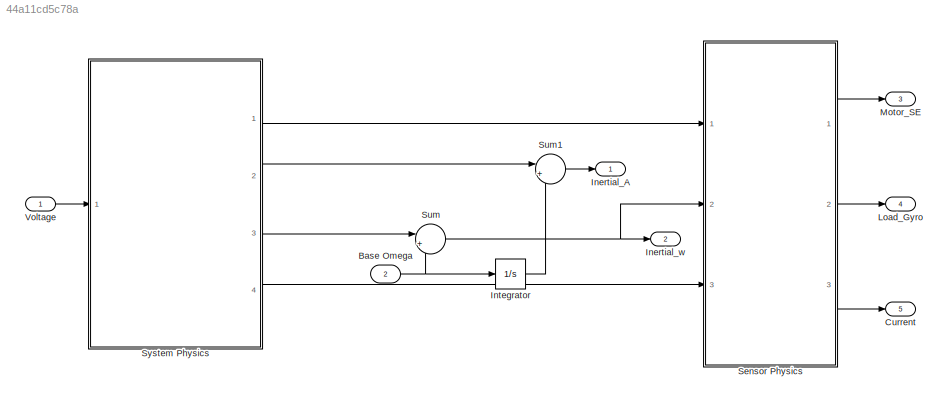
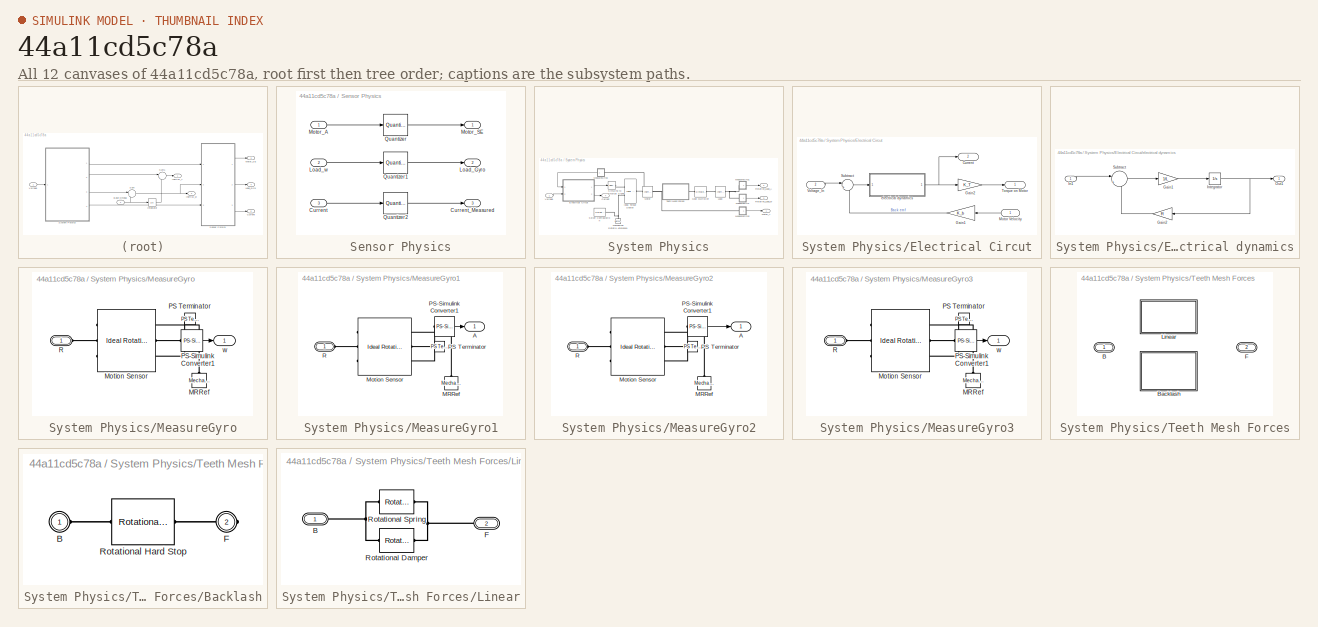
[diagram: thumbnail index - all 12 canvases of the model, root first then tree order]
MODEL slx_44a11cd5c78a
KIND model
CONFIG AbsTol = auto
CONFIG EnableMultiTasking = off
CONFIG FixedStep = auto
CONFIG MaxStep = auto
CONFIG MinStep = auto
CONFIG RelTol = 1e-3
CONFIG SampleTimeConstraint = Unconstrained
CONFIG SolverName = VariableStepAuto
CONFIG StartTime = 0.0
CONFIG StopTime = 10.0
BLOCK [Inport] Base Omega
  OutDataTypeStr = double
  Port = 2
  SampleTime = 0
BLOCK [Outport] Current
  Port = 5
BLOCK [Outport] Inertial_A
BLOCK [Outport] Inertial_w
  Port = 2
BLOCK [Integrator] Integrator
  Ports = [1, 1]
BLOCK [Outport] Load_Gyro
  Port = 4
BLOCK [Outport] Motor_SE
  Port = 3
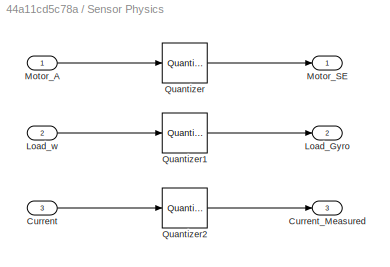
BLOCK [SubSystem] Sensor Physics
  Ports = [3, 3]
  RequestExecContextInheritance = off
BLOCK [Inport] Sensor Physics/Current
  Port = 3
BLOCK [Outport] Sensor Physics/Current_Measured
  Port = 3
BLOCK [Outport] Sensor Physics/Load_Gyro
  Port = 2
BLOCK [Inport] Sensor Physics/Load_w
  Port = 2
BLOCK [Inport] Sensor Physics/Motor_A
BLOCK [Outport] Sensor Physics/Motor_SE
BLOCK [Quantizer] Sensor Physics/Quantizer
  QuantizationInterval = 2*pi/(2^25)
BLOCK [Quantizer] Sensor Physics/Quantizer1
  QuantizationInterval = 2*pi/(2^25)/(ts_control)
BLOCK [Quantizer] Sensor Physics/Quantizer2
  QuantizationInterval = 1e-10
BLOCK [Sum] Sum
  Inputs = |++
  Ports = [2, 1]
BLOCK [Sum] Sum1
  Inputs = |++
  Ports = [2, 1]
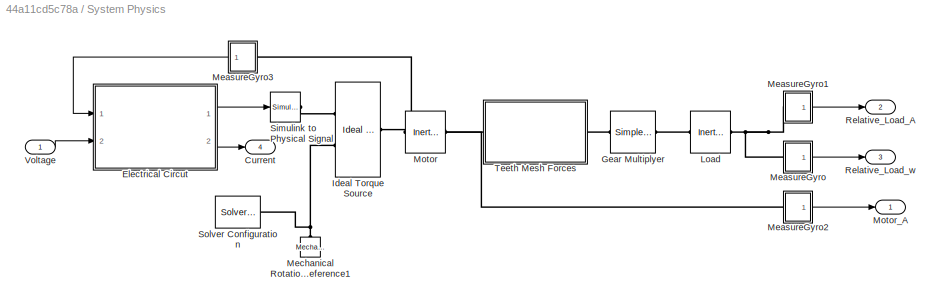
BLOCK [SubSystem] System Physics
  Ports = [1, 4]
  RequestExecContextInheritance = off
BLOCK [Outport] System Physics/Current
  Port = 4
BLOCK [SubSystem] System Physics/Electrical Circut
  Ports = [2, 2]
  RequestExecContextInheritance = off
BLOCK [Outport] System Physics/Electrical Circut/Current
  Port = 2
BLOCK [Gain] System Physics/Electrical Circut/Gain1
  Gain = K_b
BLOCK [Gain] System Physics/Electrical Circut/Gain2
  Gain = K_T
BLOCK [Inport] System Physics/Electrical Circut/Motor Velocity
BLOCK [Sum] System Physics/Electrical Circut/Subtract
  Inputs = |+-
  Ports = [2, 1]
BLOCK [Outport] System Physics/Electrical Circut/Torque on Motor
BLOCK [Inport] System Physics/Electrical Circut/Voltage_In
  NameLocation = top
  Port = 2
BLOCK [SubSystem] System Physics/Electrical Circut/electrical dynamics
  Ports = [1, 1]
  RequestExecContextInheritance = off
BLOCK [Gain] System Physics/Electrical Circut/electrical dynamics/Gain1
  Gain = 1/L
BLOCK [Gain] System Physics/Electrical Circut/electrical dynamics/Gain2
  Gain = R
BLOCK [Inport] System Physics/Electrical Circut/electrical dynamics/In1
BLOCK [Integrator] System Physics/Electrical Circut/electrical dynamics/Integrator
  Ports = [1, 1]
BLOCK [Outport] System Physics/Electrical Circut/electrical dynamics/Out1
BLOCK [Sum] System Physics/Electrical Circut/electrical dynamics/Subtract
  Inputs = |+-
  Ports = [2, 1]
BLOCK [Reference] System Physics/Gear Multiplyer  REF=sdl_lib/Gears/Simple Gear
  Ports = [0, 0, 0, 0, 0, 1, 1]
  SourceBlock = sdl_lib/Gears/Simple Gear
  SourceProductBaseCode = LD
  SourceType = Simple Gear
BLOCK [Reference] System Physics/Ideal Torque Source  REF=fl_lib/Mechanical/Mechanical Sources/Ideal Torque Source
  Ports = [0, 0, 0, 0, 0, 1, 2]
  SourceBlock = fl_lib/Mechanical/Mechanical Sources/Ideal Torque Source
  SourceProductBaseCode = SS
  SourceType = Ideal Torque Source
BLOCK [Reference] System Physics/Load  REF=fl_lib/Mechanical/Rotational Elements/Inertia
  NameLocation = top
  Ports = [0, 0, 0, 0, 0, 1, 1]
  SourceBlock = fl_lib/Mechanical/Rotational Elements/Inertia
  SourceProductBaseCode = SS
  SourceType = Inertia
BLOCK [SubSystem] System Physics/MeasureGyro
  Ports = [0, 1, 0, 0, 0, 1]
  RequestExecContextInheritance = off
BLOCK [Reference] System Physics/MeasureGyro/MRRef  REF=fl_lib/Mechanical/Rotational Elements/Mechanical
Rotational Reference
  NameLocation = right
  Ports = [0, 0, 0, 0, 0, 1]
  SourceBlock = fl_lib/Mechanical/Rotational Elements/Mechanical\nRotational Reference
  SourceProductName = Foundation Library
  SourceType = Mechanical\nRotational Reference
BLOCK [Reference] System Physics/MeasureGyro/Motion Sensor  REF=fl_lib/Mechanical/Mechanical Sensors/Ideal Rotational
Motion Sensor
  Ports = [0, 0, 0, 0, 0, 1, 3]
  SourceBlock = fl_lib/Mechanical/Mechanical Sensors/Ideal Rotational\nMotion Sensor
  SourceProductName = Foundation Library
  SourceType = Ideal Rotational\nMotion Sensor
BLOCK [Reference] System Physics/MeasureGyro/PS Terminator  REF=fl_lib/Physical Signals/Sinks/PS Terminator
  Ports = [0, 0, 0, 0, 0, 1]
  SourceBlock = fl_lib/Physical Signals/Sinks/PS Terminator
  SourceProductBaseCode = SS
  SourceType = PS Terminator
BLOCK [Reference] System Physics/MeasureGyro/PS-Simulink Converter1  REF=nesl_utility/PS-Simulink
Converter
  Ports = [0, 1, 0, 0, 0, 1]
  SourceBlock = nesl_utility/PS-Simulink\nConverter
  SourceProductName = Utilities
  SourceType = PS-Simulink\nConverter
BLOCK [PMIOPort] System Physics/MeasureGyro/R
  Side = Left
BLOCK [Outport] System Physics/MeasureGyro/w
  VectorParamsAs1DForOutWhenUnconnected = off
BLOCK [SubSystem] System Physics/MeasureGyro1
  Ports = [0, 1, 0, 0, 0, 1]
  RequestExecContextInheritance = off
BLOCK [Outport] System Physics/MeasureGyro1/A
  VectorParamsAs1DForOutWhenUnconnected = off
BLOCK [Reference] System Physics/MeasureGyro1/MRRef  REF=fl_lib/Mechanical/Rotational Elements/Mechanical
Rotational Reference
  NameLocation = right
  Ports = [0, 0, 0, 0, 0, 1]
  SourceBlock = fl_lib/Mechanical/Rotational Elements/Mechanical\nRotational Reference
  SourceProductName = Foundation Library
  SourceType = Mechanical\nRotational Reference
BLOCK [Reference] System Physics/MeasureGyro1/Motion Sensor  REF=fl_lib/Mechanical/Mechanical Sensors/Ideal Rotational
Motion Sensor
  Ports = [0, 0, 0, 0, 0, 1, 3]
  SourceBlock = fl_lib/Mechanical/Mechanical Sensors/Ideal Rotational\nMotion Sensor
  SourceProductName = Foundation Library
  SourceType = Ideal Rotational\nMotion Sensor
BLOCK [Reference] System Physics/MeasureGyro1/PS Terminator  REF=fl_lib/Physical Signals/Sinks/PS Terminator
  Ports = [0, 0, 0, 0, 0, 1]
  SourceBlock = fl_lib/Physical Signals/Sinks/PS Terminator
  SourceProductBaseCode = SS
  SourceType = PS Terminator
BLOCK [Reference] System Physics/MeasureGyro1/PS-Simulink Converter1  REF=nesl_utility/PS-Simulink
Converter
  Ports = [0, 1, 0, 0, 0, 1]
  SourceBlock = nesl_utility/PS-Simulink\nConverter
  SourceProductName = Utilities
  SourceType = PS-Simulink\nConverter
BLOCK [PMIOPort] System Physics/MeasureGyro1/R
  Side = Left
BLOCK [SubSystem] System Physics/MeasureGyro2
  Ports = [0, 1, 0, 0, 0, 1]
  RequestExecContextInheritance = off
BLOCK [Outport] System Physics/MeasureGyro2/A
  VectorParamsAs1DForOutWhenUnconnected = off
BLOCK [Reference] System Physics/MeasureGyro2/MRRef  REF=fl_lib/Mechanical/Rotational Elements/Mechanical
Rotational Reference
  NameLocation = right
  Ports = [0, 0, 0, 0, 0, 1]
  SourceBlock = fl_lib/Mechanical/Rotational Elements/Mechanical\nRotational Reference
  SourceProductName = Foundation Library
  SourceType = Mechanical\nRotational Reference
BLOCK [Reference] System Physics/MeasureGyro2/Motion Sensor  REF=fl_lib/Mechanical/Mechanical Sensors/Ideal Rotational
Motion Sensor
  Ports = [0, 0, 0, 0, 0, 1, 3]
  SourceBlock = fl_lib/Mechanical/Mechanical Sensors/Ideal Rotational\nMotion Sensor
  SourceProductName = Foundation Library
  SourceType = Ideal Rotational\nMotion Sensor
BLOCK [Reference] System Physics/MeasureGyro2/PS Terminator  REF=fl_lib/Physical Signals/Sinks/PS Terminator
  Ports = [0, 0, 0, 0, 0, 1]
  SourceBlock = fl_lib/Physical Signals/Sinks/PS Terminator
  SourceProductBaseCode = SS
  SourceType = PS Terminator
BLOCK [Reference] System Physics/MeasureGyro2/PS-Simulink Converter1  REF=nesl_utility/PS-Simulink
Converter
  Ports = [0, 1, 0, 0, 0, 1]
  SourceBlock = nesl_utility/PS-Simulink\nConverter
  SourceProductName = Utilities
  SourceType = PS-Simulink\nConverter
BLOCK [PMIOPort] System Physics/MeasureGyro2/R
  Side = Left
BLOCK [SubSystem] System Physics/MeasureGyro3
  NameLocation = top
  Ports = [0, 1, 0, 0, 0, 1]
  RequestExecContextInheritance = off
BLOCK [Reference] System Physics/MeasureGyro3/MRRef  REF=fl_lib/Mechanical/Rotational Elements/Mechanical
Rotational Reference
  NameLocation = right
  Ports = [0, 0, 0, 0, 0, 1]
  SourceBlock = fl_lib/Mechanical/Rotational Elements/Mechanical\nRotational Reference
  SourceProductName = Foundation Library
  SourceType = Mechanical\nRotational Reference
BLOCK [Reference] System Physics/MeasureGyro3/Motion Sensor  REF=fl_lib/Mechanical/Mechanical Sensors/Ideal Rotational
Motion Sensor
  Ports = [0, 0, 0, 0, 0, 1, 3]
  SourceBlock = fl_lib/Mechanical/Mechanical Sensors/Ideal Rotational\nMotion Sensor
  SourceProductName = Foundation Library
  SourceType = Ideal Rotational\nMotion Sensor
BLOCK [Reference] System Physics/MeasureGyro3/PS Terminator  REF=fl_lib/Physical Signals/Sinks/PS Terminator
  Ports = [0, 0, 0, 0, 0, 1]
  SourceBlock = fl_lib/Physical Signals/Sinks/PS Terminator
  SourceProductBaseCode = SS
  SourceType = PS Terminator
BLOCK [Reference] System Physics/MeasureGyro3/PS-Simulink Converter1  REF=nesl_utility/PS-Simulink
Converter
  Ports = [0, 1, 0, 0, 0, 1]
  SourceBlock = nesl_utility/PS-Simulink\nConverter
  SourceProductName = Utilities
  SourceType = PS-Simulink\nConverter
BLOCK [PMIOPort] System Physics/MeasureGyro3/R
  Side = Left
BLOCK [Outport] System Physics/MeasureGyro3/w
  VectorParamsAs1DForOutWhenUnconnected = off
BLOCK [Reference] System Physics/Mechanical Rotational Reference1  REF=fl_lib/Mechanical/Rotational Elements/Mechanical
Rotational Reference
  NameLocation = right
  Ports = [0, 0, 0, 0, 0, 1]
  SourceBlock = fl_lib/Mechanical/Rotational Elements/Mechanical\nRotational Reference
  SourceProductBaseCode = SS
  SourceType = Mechanical\nRotational Reference
BLOCK [Reference] System Physics/Motor  REF=fl_lib/Mechanical/Rotational Elements/Inertia
  NameLocation = top
  Ports = [0, 0, 0, 0, 0, 1, 1]
  SourceBlock = fl_lib/Mechanical/Rotational Elements/Inertia
  SourceProductBaseCode = SS
  SourceType = Inertia
BLOCK [Outport] System Physics/Motor_A
BLOCK [Outport] System Physics/Relative_Load_A
  Port = 2
BLOCK [Outport] System Physics/Relative_Load_w
  Port = 3
BLOCK [Reference] System Physics/Simulink to Physical Signal  REF=nesl_utility/Simulink-PS
Converter
  NameLocation = top
  Ports = [1, 0, 0, 0, 0, 0, 1]
  SourceBlock = nesl_utility/Simulink-PS\nConverter
  SourceProductBaseCode = SS
  SourceType = Simulink-PS\nConverter
BLOCK [Reference] System Physics/Solver Configuration  REF=nesl_utility/Solver
Configuration
  Ports = [0, 0, 0, 0, 0, 0, 1]
  SourceBlock = nesl_utility/Solver\nConfiguration
  SourceProductBaseCode = SS
  SourceType = Solver\nConfiguration
BLOCK [SubSystem] System Physics/Teeth Mesh Forces
  LabelModeActiveChoice = Linear
  Ports = [0, 0, 0, 0, 0, 1, 1]
  RequestExecContextInheritance = off
  Variant = on
  VariantControl = Choice
  VariantControlMode = label
BLOCK [PMIOPort] System Physics/Teeth Mesh Forces/B
  Side = Left
BLOCK [SubSystem] System Physics/Teeth Mesh Forces/Backlash
  Ports = [0, 0, 0, 0, 0, 1, 1]
  RequestExecContextInheritance = off
  VariantControl = NonLinear
BLOCK [PMIOPort] System Physics/Teeth Mesh Forces/Backlash/B
  Side = Left
BLOCK [PMIOPort] System Physics/Teeth Mesh Forces/Backlash/F
  NameLocation = top
  Port = 2
  Side = Right
BLOCK [Reference] System Physics/Teeth Mesh Forces/Backlash/Rotational Hard Stop  REF=fl_lib/Mechanical/Rotational Elements/Rotational Hard Stop
  Ports = [0, 0, 0, 0, 0, 1, 1]
  SourceBlock = fl_lib/Mechanical/Rotational Elements/Rotational Hard Stop
  SourceProductBaseCode = SS
  SourceType = Rotational Hard Stop
BLOCK [PMIOPort] System Physics/Teeth Mesh Forces/F
  Port = 2
  Side = Right
BLOCK [SubSystem] System Physics/Teeth Mesh Forces/Linear
  Ports = [0, 0, 0, 0, 0, 1, 1]
  RequestExecContextInheritance = off
  VariantControl = Linear
BLOCK [PMIOPort] System Physics/Teeth Mesh Forces/Linear/B
  Side = Left
BLOCK [PMIOPort] System Physics/Teeth Mesh Forces/Linear/F
  Port = 2
  Side = Right
BLOCK [Reference] System Physics/Teeth Mesh Forces/Linear/Rotational Damper  REF=fl_lib/Mechanical/Rotational Elements/Rotational Damper
  Ports = [0, 0, 0, 0, 0, 1, 1]
  SourceBlock = fl_lib/Mechanical/Rotational Elements/Rotational Damper
  SourceProductBaseCode = SS
  SourceType = Rotational Damper
BLOCK [Reference] System Physics/Teeth Mesh Forces/Linear/Rotational Spring  REF=fl_lib/Mechanical/Rotational Elements/Rotational Spring
  Ports = [0, 0, 0, 0, 0, 1, 1]
  SourceBlock = fl_lib/Mechanical/Rotational Elements/Rotational Spring
  SourceProductBaseCode = SS
  SourceType = Rotational Spring
BLOCK [Inport] System Physics/Voltage
BLOCK [Inport] Voltage
  OutDataTypeStr = double
  SampleTime = 0
NET Base Omega:1 -> Integrator:1, Sum:2
LINE Integrator:1 -> Sum1:2
LINE Sensor Physics/Current:1 -> Sensor Physics/Quantizer2:1
LINE Sensor Physics/Load_w:1 -> Sensor Physics/Quantizer1:1
LINE Sensor Physics/Motor_A:1 -> Sensor Physics/Quantizer:1
LINE Sensor Physics/Quantizer1:1 -> Sensor Physics/Load_Gyro:1
LINE Sensor Physics/Quantizer2:1 -> Sensor Physics/Current_Measured:1
LINE Sensor Physics/Quantizer:1 -> Sensor Physics/Motor_SE:1
LINE Sensor Physics:1 -> Motor_SE:1
LINE Sensor Physics:2 -> Load_Gyro:1
LINE Sensor Physics:3 -> Current:1
LINE Sum1:1 -> Inertial_A:1
NET Sum:1 -> Inertial_w:1, Sensor Physics:2
LINE System Physics/Electrical Circut/Gain1:1 -> System Physics/Electrical Circut/Subtract:2
LINE System Physics/Electrical Circut/Gain2:1 -> System Physics/Electrical Circut/Torque on Motor:1
LINE System Physics/Electrical Circut/Motor Velocity:1 -> System Physics/Electrical Circut/Gain1:1
LINE System Physics/Electrical Circut/Subtract:1 -> System Physics/Electrical Circut/electrical dynamics:1
LINE System Physics/Electrical Circut/Voltage_In:1 -> System Physics/Electrical Circut/Subtract:1
LINE System Physics/Electrical Circut/electrical dynamics/Gain1:1 -> System Physics/Electrical Circut/electrical dynamics/Integrator:1
LINE System Physics/Electrical Circut/electrical dynamics/Gain2:1 -> System Physics/Electrical Circut/electrical dynamics/Subtract:2
LINE System Physics/Electrical Circut/electrical dynamics/In1:1 -> System Physics/Electrical Circut/electrical dynamics/Subtract:1
NET System Physics/Electrical Circut/electrical dynamics/Integrator:1 -> System Physics/Electrical Circut/electrical dynamics/Gain2:1, System Physics/Electrical Circut/electrical dynamics/Out1:1
LINE System Physics/Electrical Circut/electrical dynamics/Subtract:1 -> System Physics/Electrical Circut/electrical dynamics/Gain1:1
NET System Physics/Electrical Circut/electrical dynamics:1 -> System Physics/Electrical Circut/Current:1, System Physics/Electrical Circut/Gain2:1
LINE System Physics/Electrical Circut:1 -> System Physics/Simulink to Physical Signal:1
LINE System Physics/Electrical Circut:2 -> System Physics/Current:1
LINE System Physics/MeasureGyro/PS-Simulink Converter1:1 -> System Physics/MeasureGyro/w:1
LINE System Physics/MeasureGyro1/PS-Simulink Converter1:1 -> System Physics/MeasureGyro1/A:1
LINE System Physics/MeasureGyro1:1 -> System Physics/Relative_Load_A:1
LINE System Physics/MeasureGyro2/PS-Simulink Converter1:1 -> System Physics/MeasureGyro2/A:1
LINE System Physics/MeasureGyro2:1 -> System Physics/Motor_A:1
LINE System Physics/MeasureGyro3/PS-Simulink Converter1:1 -> System Physics/MeasureGyro3/w:1
LINE System Physics/MeasureGyro3:1 -> System Physics/Electrical Circut:1
LINE System Physics/MeasureGyro:1 -> System Physics/Relative_Load_w:1
LINE System Physics/Voltage:1 -> System Physics/Electrical Circut:2
LINE System Physics:1 -> Sensor Physics:1
LINE System Physics:2 -> Sum1:1
LINE System Physics:3 -> Sum:1
LINE System Physics:4 -> Sensor Physics:3
LINE Voltage:1 -> System Physics:1
PLINE System Physics/Gear Multiplyer:LConn1 -- System Physics/Teeth Mesh Forces:RConn1
PLINE System Physics/Gear Multiplyer:RConn1 -- System Physics/Load:LConn1
PLINE System Physics/Ideal Torque Source:LConn1 -- System Physics/Motor:LConn1
PLINE System Physics/Ideal Torque Source:RConn1 -- System Physics/Simulink to Physical Signal:RConn1
PNET net1: System Physics/Ideal Torque Source:RConn2 -- System Physics/Mechanical Rotational Reference1:LConn1 -- System Physics/Solver Configuration:RConn1
PNET net2: System Physics/Load:RConn1 -- System Physics/MeasureGyro1:LConn1 -- System Physics/MeasureGyro:LConn1
PLINE System Physics/MeasureGyro/MRRef:LConn1 -- System Physics/MeasureGyro/Motion Sensor:RConn1
PLINE System Physics/MeasureGyro/Motion Sensor:LConn1 -- System Physics/MeasureGyro/R:RConn1
PLINE System Physics/MeasureGyro/Motion Sensor:RConn2 -- System Physics/MeasureGyro/PS-Simulink Converter1:LConn1
PLINE System Physics/MeasureGyro/Motion Sensor:RConn3 -- System Physics/MeasureGyro/PS Terminator:LConn1
PLINE System Physics/MeasureGyro1/MRRef:LConn1 -- System Physics/MeasureGyro1/Motion Sensor:RConn1
PLINE System Physics/MeasureGyro1/Motion Sensor:LConn1 -- System Physics/MeasureGyro1/R:RConn1
PLINE System Physics/MeasureGyro1/Motion Sensor:RConn2 -- System Physics/MeasureGyro1/PS Terminator:LConn1
PLINE System Physics/MeasureGyro1/Motion Sensor:RConn3 -- System Physics/MeasureGyro1/PS-Simulink Converter1:LConn1
PLINE System Physics/MeasureGyro2/MRRef:LConn1 -- System Physics/MeasureGyro2/Motion Sensor:RConn1
PLINE System Physics/MeasureGyro2/Motion Sensor:LConn1 -- System Physics/MeasureGyro2/R:RConn1
PLINE System Physics/MeasureGyro2/Motion Sensor:RConn2 -- System Physics/MeasureGyro2/PS Terminator:LConn1
PLINE System Physics/MeasureGyro2/Motion Sensor:RConn3 -- System Physics/MeasureGyro2/PS-Simulink Converter1:LConn1
PNET net3: System Physics/MeasureGyro2:LConn1 -- System Physics/MeasureGyro3:LConn1 -- System Physics/Motor:RConn1 -- System Physics/Teeth Mesh Forces:LConn1
PLINE System Physics/MeasureGyro3/MRRef:LConn1 -- System Physics/MeasureGyro3/Motion Sensor:RConn1
PLINE System Physics/MeasureGyro3/Motion Sensor:LConn1 -- System Physics/MeasureGyro3/R:RConn1
PLINE System Physics/MeasureGyro3/Motion Sensor:RConn2 -- System Physics/MeasureGyro3/PS-Simulink Converter1:LConn1
PLINE System Physics/MeasureGyro3/Motion Sensor:RConn3 -- System Physics/MeasureGyro3/PS Terminator:LConn1
PLINE System Physics/Teeth Mesh Forces/Backlash/B:RConn1 -- System Physics/Teeth Mesh Forces/Backlash/Rotational Hard Stop:LConn1
PLINE System Physics/Teeth Mesh Forces/Backlash/F:RConn1 -- System Physics/Teeth Mesh Forces/Backlash/Rotational Hard Stop:RConn1
PNET net4: System Physics/Teeth Mesh Forces/Linear/B:RConn1 -- System Physics/Teeth Mesh Forces/Linear/Rotational Damper:LConn1 -- System Physics/Teeth Mesh Forces/Linear/Rotational Spring:LConn1
PNET net5: System Physics/Teeth Mesh Forces/Linear/F:RConn1 -- System Physics/Teeth Mesh Forces/Linear/Rotational Damper:RConn1 -- System Physics/Teeth Mesh Forces/Linear/Rotational Spring:RConn1
note: NET lines group one-source signal fan-out (src -> all destinations, sorted); 1:1 wires keep LINE; PNET lines group multi-terminal physical nets as a canonical sorted terminal list (undirected conserving connections); 2-terminal nets keep the pairwise PLINE form
